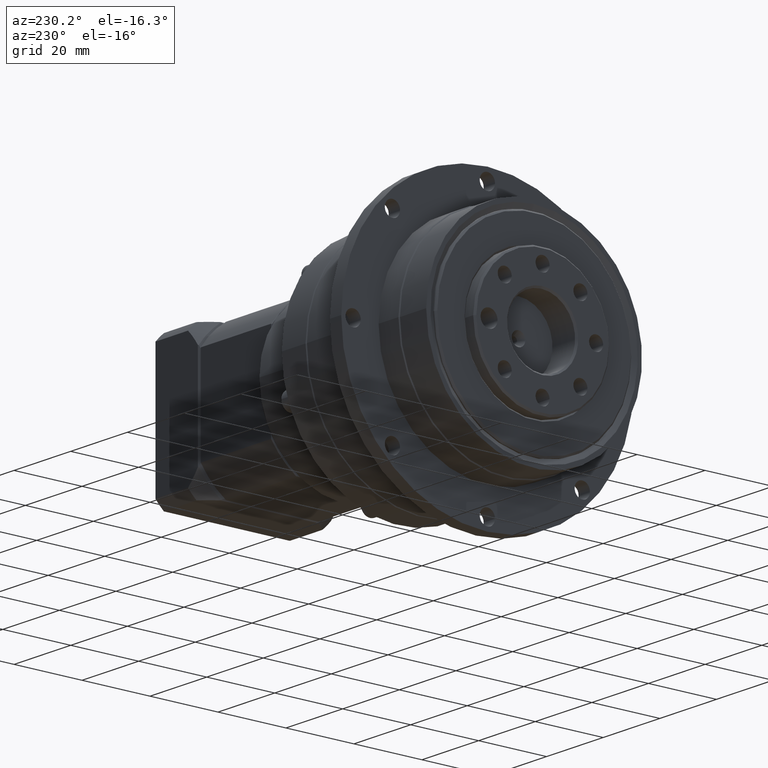
[diagram: clean part render]
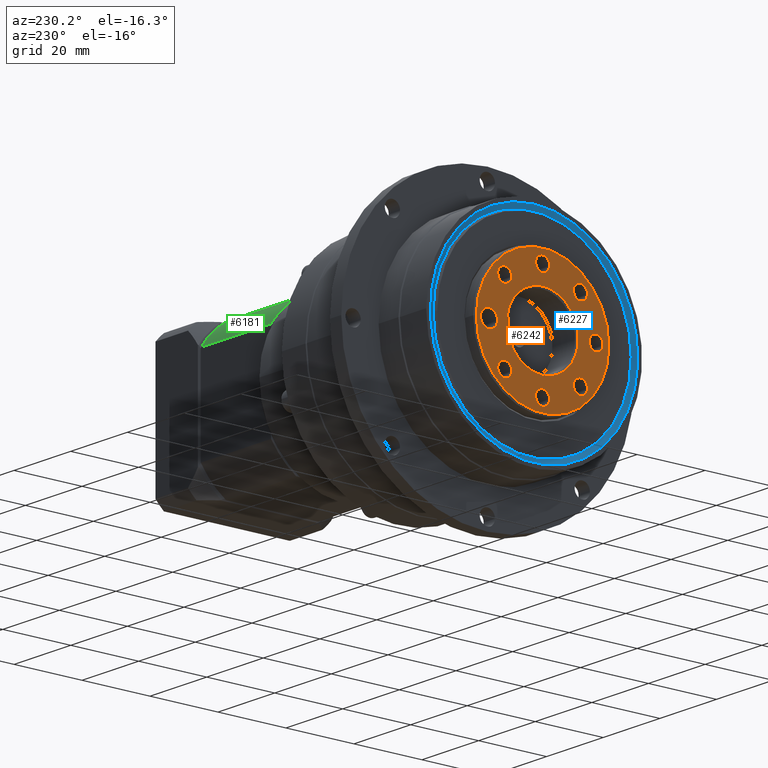
[diagram: same view with three faces highlighted in distinct colors, each labeled with its STEP entity id]
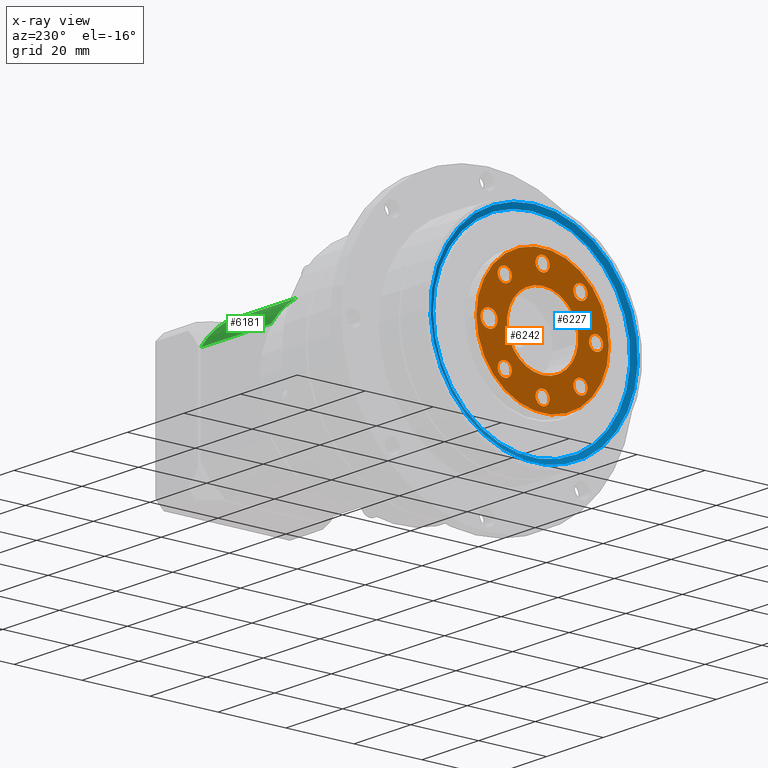
[diagram: x-ray of the same camera — body ghosted, the three highlighted faces saturated]
A machine part, auxiliary view with three faces highlighted in distinct colors.
The next image is the same camera in x-ray (body ghosted, the three faces saturated) — at least one of them is partly hidden behind the body in this view.
Their STEP definitions:

[orange] entity #6242 — the highlighted planar face has unit normal (-1, 0, -0).
#945=PLANE('',#6968);
#1164=FACE_BOUND('',#2166,.T.);
#1165=FACE_BOUND('',#2167,.T.);
#1166=FACE_BOUND('',#2168,.T.);
#1167=FACE_BOUND('',#2169,.T.);
#1168=FACE_BOUND('',#2170,.T.);
#1169=FACE_BOUND('',#2171,.T.);
#1170=FACE_BOUND('',#2172,.T.);
#1171=FACE_BOUND('',#2173,.T.);
#1172=FACE_BOUND('',#2174,.T.);
#1561=FACE_OUTER_BOUND('',#2165,.T.);
#2165=EDGE_LOOP('',(#5159));
#2166=EDGE_LOOP('',(#5160));
#2167=EDGE_LOOP('',(#5161));
#2168=EDGE_LOOP('',(#5162));
#2169=EDGE_LOOP('',(#5163));
#2170=EDGE_LOOP('',(#5164));
#2171=EDGE_LOOP('',(#5165));
#2172=EDGE_LOOP('',(#5166));
#2173=EDGE_LOOP('',(#5167));
#2174=EDGE_LOOP('',(#5168));
#2657=CIRCLE('',#6964,19.5);
#2660=CIRCLE('',#6969,2.067);
#2661=CIRCLE('',#6970,2.067);
#2662=CIRCLE('',#6971,2.067);
#2663=CIRCLE('',#6972,2.067);
#2664=CIRCLE('',#6973,2.067);
#2665=CIRCLE('',#6974,2.067);
#2666=CIRCLE('',#6975,2.067);
#2667=CIRCLE('',#6976,2.5);
#2668=CIRCLE('',#6977,10.5);
#3152=VERTEX_POINT('',#10636);
#3155=VERTEX_POINT('',#10644);
#3156=VERTEX_POINT('',#10646);
#3157=VERTEX_POINT('',#10648);
#3158=VERTEX_POINT('',#10650);
#3159=VERTEX_POINT('',#10652);
#3160=VERTEX_POINT('',#10654);
#3161=VERTEX_POINT('',#10656);
#3162=VERTEX_POINT('',#10658);
#3163=VERTEX_POINT('',#10660);
#3866=EDGE_CURVE('',#3152,#3152,#2657,.T.);
#3869=EDGE_CURVE('',#3155,#3155,#2660,.T.);
#3870=EDGE_CURVE('',#3156,#3156,#2661,.T.);
#3871=EDGE_CURVE('',#3157,#3157,#2662,.T.);
#3872=EDGE_CURVE('',#3158,#3158,#2663,.T.);
#3873=EDGE_CURVE('',#3159,#3159,#2664,.T.);
#3874=EDGE_CURVE('',#3160,#3160,#2665,.T.);
#3875=EDGE_CURVE('',#3161,#3161,#2666,.T.);
#3876=EDGE_CURVE('',#3162,#3162,#2667,.T.);
#3877=EDGE_CURVE('',#3163,#3163,#2668,.T.);
#5159=ORIENTED_EDGE('',*,*,#3866,.F.);
#5160=ORIENTED_EDGE('',*,*,#3869,.T.);
#5161=ORIENTED_EDGE('',*,*,#3870,.T.);
#5162=ORIENTED_EDGE('',*,*,#3871,.T.);
#5163=ORIENTED_EDGE('',*,*,#3872,.T.);
#5164=ORIENTED_EDGE('',*,*,#3873,.T.);
#5165=ORIENTED_EDGE('',*,*,#3874,.T.);
#5166=ORIENTED_EDGE('',*,*,#3875,.T.);
#5167=ORIENTED_EDGE('',*,*,#3876,.T.);
#5168=ORIENTED_EDGE('',*,*,#3877,.F.);
#6242=ADVANCED_FACE('',(#1561,#1164,#1165,#1166,#1167,#1168,#1169,#1170,
#1171,#1172),#945,.T.);
#6964=AXIS2_PLACEMENT_3D('',#10637,#8538,#8539);
#6968=AXIS2_PLACEMENT_3D('',#10643,#8546,#8547);
#6969=AXIS2_PLACEMENT_3D('',#10645,#8548,#8549);
#6970=AXIS2_PLACEMENT_3D('',#10647,#8550,#8551);
#6971=AXIS2_PLACEMENT_3D('',#10649,#8552,#8553);
#6972=AXIS2_PLACEMENT_3D('',#10651,#8554,#8555);
#6973=AXIS2_PLACEMENT_3D('',#10653,#8556,#8557);
#6974=AXIS2_PLACEMENT_3D('',#10655,#8558,#8559);
#6975=AXIS2_PLACEMENT_3D('',#10657,#8560,#8561);
#6976=AXIS2_PLACEMENT_3D('',#10659,#8562,#8563);
#6977=AXIS2_PLACEMENT_3D('',#10661,#8564,#8565);
#8538=DIRECTION('center_axis',(1.,-3.29238430854322E-29,7.19427574993346E-16));
#8539=DIRECTION('ref_axis',(-3.3922249408317E-29,-1.,1.38777878078144E-15));
#8546=DIRECTION('center_axis',(-1.,3.29238430854322E-29,-7.19427574993346E-16));
#8547=DIRECTION('ref_axis',(-7.105427357601E-16,1.38777878078145E-15,1.));
#8548=DIRECTION('center_axis',(1.,-3.29238430854322E-29,7.19427574993346E-16));
#8549=DIRECTION('ref_axis',(-5.08712116850364E-16,0.707106781186549,0.707106781186546));
#8550=DIRECTION('center_axis',(1.,-3.29238430854322E-29,7.19427574993346E-16));
#8551=DIRECTION('ref_axis',(3.40188537936954E-29,1.,-1.52205829512894E-15));
#8552=DIRECTION('center_axis',(1.,-3.29238430854322E-29,7.19427574993346E-16));
#8553=DIRECTION('ref_axis',(5.08712116850413E-16,0.707106781186546,-0.707106781186549));
#8554=DIRECTION('center_axis',(1.,-3.29238430854322E-29,7.19427574993346E-16));
#8555=DIRECTION('ref_axis',(5.08712116850365E-16,-0.707106781186549,-0.707106781186547));
#8556=DIRECTION('center_axis',(1.,-3.29238430854322E-29,7.19427574993346E-16));
#8557=DIRECTION('ref_axis',(-3.3922249408317E-29,-1.,1.38777878078144E-15));
#8558=DIRECTION('center_axis',(1.,-3.29238430854322E-29,7.19427574993346E-16));
#8559=DIRECTION('ref_axis',(-5.08712116850413E-16,-0.707106781186547,0.707106781186549));
#8560=DIRECTION('center_axis',(1.,-3.29238430854322E-29,7.19427574993346E-16));
#8561=DIRECTION('ref_axis',(-7.19427574993346E-16,1.38777878078144E-15,
1.));
#8562=DIRECTION('center_axis',(1.,-3.29238430854322E-29,7.19427574993346E-16));
#8563=DIRECTION('ref_axis',(-7.19427574993346E-16,1.38777878078144E-15,
1.));
#8564=DIRECTION('center_axis',(-1.,3.29238430854322E-29,-7.19427574993346E-16));
#8565=DIRECTION('ref_axis',(7.19427574993346E-16,-1.38777878078144E-15,
-1.));
#10636=CARTESIAN_POINT('',(-23.5162394672929,0.249703507632342,20.3816875810055));
#10637=CARTESIAN_POINT('Origin',(-23.5162394672929,-19.2502964923677,20.3816875810055));
#10643=CARTESIAN_POINT('Origin',(-23.5162394672929,0.74970350763234,20.3816875810055));
#10644=CARTESIAN_POINT('',(-23.516239467293,-28.9256385793432,32.9802091014063));
#10645=CARTESIAN_POINT('Origin',(-23.516239467293,-30.3872282960558,31.5186193846937));
#10646=CARTESIAN_POINT('',(-23.516239467293,-17.1832964923676,36.1316875810055));
#10647=CARTESIAN_POINT('Origin',(-23.516239467293,-19.2502964923676,36.1316875810055));
#10648=CARTESIAN_POINT('',(-23.516239467293,-6.65177497196692,30.057029667981));
#10649=CARTESIAN_POINT('Origin',(-23.516239467293,-8.11336468867951,31.5186193846936));
#10650=CARTESIAN_POINT('',(-23.5162394672929,-9.57495440539214,7.78316606060479));
#10651=CARTESIAN_POINT('Origin',(-23.5162394672929,-8.11336468867954,9.24475577731738));
#10652=CARTESIAN_POINT('',(-23.5162394672929,-21.3172964923677,4.63168758100553));
#10653=CARTESIAN_POINT('Origin',(-23.5162394672929,-19.2502964923677,4.63168758100552));
#10654=CARTESIAN_POINT('',(-23.5162394672929,-31.8488180127684,10.70634549403));
#10655=CARTESIAN_POINT('Origin',(-23.5162394672929,-30.3872282960558,9.24475577731742));
#10656=CARTESIAN_POINT('',(-23.5162394672929,-35.0002964923677,22.4486875810055));
#10657=CARTESIAN_POINT('Origin',(-23.5162394672929,-35.0002964923677,20.3816875810055));
#10658=CARTESIAN_POINT('',(-23.5162394672929,-3.50029649236765,22.8816875810055));
#10659=CARTESIAN_POINT('Origin',(-23.5162394672929,-3.50029649236765,20.3816875810055));
#10660=CARTESIAN_POINT('',(-23.516239467293,-19.2502964923676,30.8816875810055));
#10661=CARTESIAN_POINT('Origin',(-23.5162394672929,-19.2502964923677,20.3816875810055));

[blue] entity #6227 — the highlighted conical surface has half-angle 60 deg.
#236=CONICAL_SURFACE('',#6944,29.75,60.);
#1149=FACE_BOUND('',#2136,.T.);
#1546=FACE_OUTER_BOUND('',#2135,.T.);
#2135=EDGE_LOOP('',(#5129));
#2136=EDGE_LOOP('',(#5130));
#2650=CIRCLE('',#6943,30.5);
#2651=CIRCLE('',#6945,29.);
#3145=VERTEX_POINT('',#10608);
#3146=VERTEX_POINT('',#10611);
#3859=EDGE_CURVE('',#3145,#3145,#2650,.T.);
#3860=EDGE_CURVE('',#3146,#3146,#2651,.T.);
#5129=ORIENTED_EDGE('',*,*,#3860,.T.);
#5130=ORIENTED_EDGE('',*,*,#3859,.T.);
#6227=ADVANCED_FACE('',(#1546,#1149),#236,.F.);
#6943=AXIS2_PLACEMENT_3D('',#10609,#8496,#8497);
#6944=AXIS2_PLACEMENT_3D('',#10610,#8498,#8499);
#6945=AXIS2_PLACEMENT_3D('',#10612,#8500,#8501);
#8496=DIRECTION('center_axis',(-1.,-6.66133814775025E-16,-5.41298131925173E-16));
#8497=DIRECTION('ref_axis',(5.41298131925257E-16,-1.25885413204685E-13,
-1.));
#8498=DIRECTION('center_axis',(-1.,-6.66133814775025E-16,-5.41298131925173E-16));
#8499=DIRECTION('ref_axis',(5.41298131925257E-16,-1.25885413204685E-13,
-1.));
#8500=DIRECTION('center_axis',(1.,6.66133814775025E-16,5.41298131925173E-16));
#8501=DIRECTION('ref_axis',(5.41298131925256E-16,-1.25885413204685E-13,
-1.));
#10608=CARTESIAN_POINT('',(-20.516239467293,-19.2502964923638,50.8816875810055));
#10609=CARTESIAN_POINT('Origin',(-20.516239467293,-19.2502964923677,20.3816875810055));
#10610=CARTESIAN_POINT('Origin',(-20.0832267654008,-19.2502964923677,20.3816875810055));
#10611=CARTESIAN_POINT('',(-19.6502140635086,-19.250296492364,49.3816875810055));
#10612=CARTESIAN_POINT('Origin',(-19.6502140635086,-19.2502964923677,20.3816875810055));

[green] entity #6181 — the highlighted cylindrical surface (partial cylindrical patch) has radius 25 mm, axis along (-1, -0, 0).
#457=LINE('',#10418,#718);
#458=LINE('',#10421,#719);
#718=VECTOR('',#8292,24.8);
#719=VECTOR('',#8295,24.8);
#1500=FACE_OUTER_BOUND('',#2047,.T.);
#2047=EDGE_LOOP('',(#4976,#4977,#4978,#4979));
#2599=CIRCLE('',#6843,25.);
#2601=CIRCLE('',#6849,25.);
#3093=VERTEX_POINT('',#10392);
#3094=VERTEX_POINT('',#10400);
#3096=VERTEX_POINT('',#10417);
#3097=VERTEX_POINT('',#10419);
#3780=EDGE_CURVE('',#3094,#3093,#2599,.T.);
#3786=EDGE_CURVE('',#3096,#3094,#457,.T.);
#3787=EDGE_CURVE('',#3097,#3096,#2601,.T.);
#3788=EDGE_CURVE('',#3093,#3097,#458,.T.);
#4976=ORIENTED_EDGE('',*,*,#3780,.F.);
#4977=ORIENTED_EDGE('',*,*,#3786,.F.);
#4978=ORIENTED_EDGE('',*,*,#3787,.F.);
#4979=ORIENTED_EDGE('',*,*,#3788,.F.);
#5585=CYLINDRICAL_SURFACE('',#6848,25.);
#6181=ADVANCED_FACE('',(#1500),#5585,.T.);
#6843=AXIS2_PLACEMENT_3D('',#10401,#8279,#8280);
#6848=AXIS2_PLACEMENT_3D('',#10416,#8290,#8291);
#6849=AXIS2_PLACEMENT_3D('',#10420,#8293,#8294);
#8279=DIRECTION('center_axis',(1.,1.38267506992121E-15,-1.25036168118047E-15));
#8280=DIRECTION('ref_axis',(1.2503616811803E-15,1.27429655911484E-13,1.));
#8290=DIRECTION('center_axis',(-1.,-1.38267506992121E-15,1.25036168118047E-15));
#8291=DIRECTION('ref_axis',(1.2503616811803E-15,1.27429655911484E-13,1.));
#8292=DIRECTION('',(1.,1.38267506992121E-15,-1.25036168118048E-15));
#8293=DIRECTION('center_axis',(-1.,-1.38267506992121E-15,1.25036168118047E-15));
#8294=DIRECTION('ref_axis',(1.2503616811803E-15,1.27429655911484E-13,1.));
#8295=DIRECTION('',(-1.,-1.38267506992121E-15,1.25036168118048E-15));
#10392=CARTESIAN_POINT('',(71.9837605327068,-5.68563652611395,41.3816875810038));
#10400=CARTESIAN_POINT('',(71.9837605327068,1.74970350763455,33.9463475472534));
#10401=CARTESIAN_POINT('Origin',(71.9837605327068,-19.2502964923672,20.3816875810055));
#10416=CARTESIAN_POINT('Origin',(72.4837605327068,-19.2502964923672,20.3816875810055));
#10417=CARTESIAN_POINT('',(47.1837605327068,1.74970350763452,33.9463475472534));
#10418=CARTESIAN_POINT('',(72.4837605327068,1.74970350763455,33.9463475472534));
#10419=CARTESIAN_POINT('',(47.1837605327068,-5.68563652611399,41.3816875810038));
#10420=CARTESIAN_POINT('Origin',(47.1837605327068,-19.2502964923672,20.3816875810055));
#10421=CARTESIAN_POINT('',(72.4837605327068,-5.68563652611395,41.3816875810038));